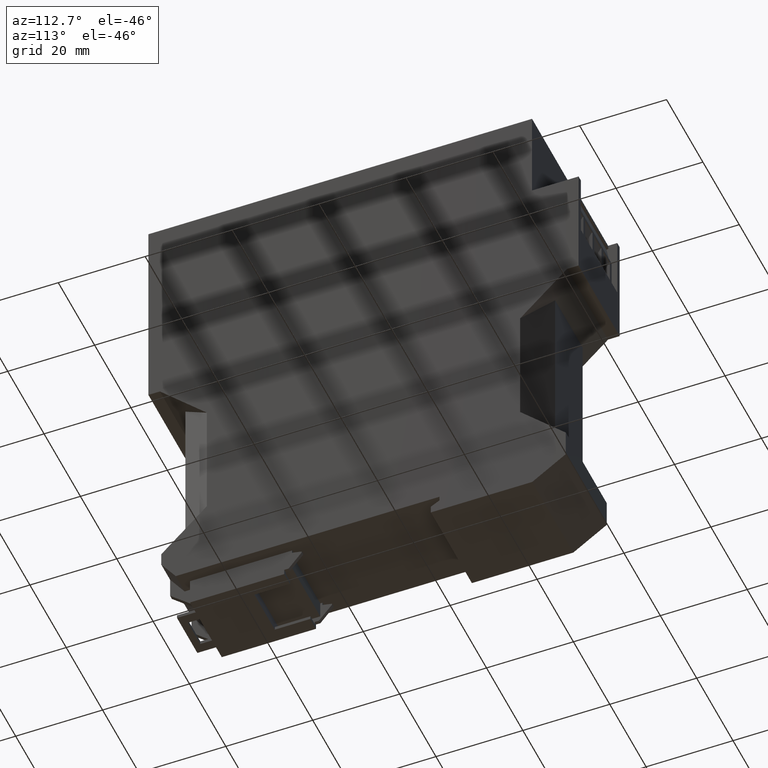
[diagram: clean part render]
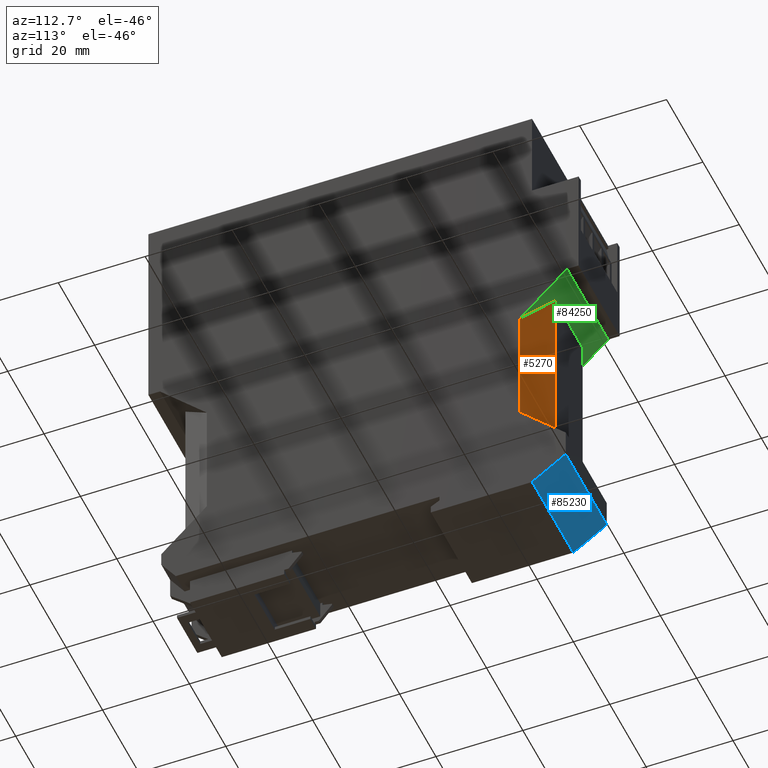
[diagram: same view with three faces highlighted in distinct colors, each labeled with its STEP entity id]
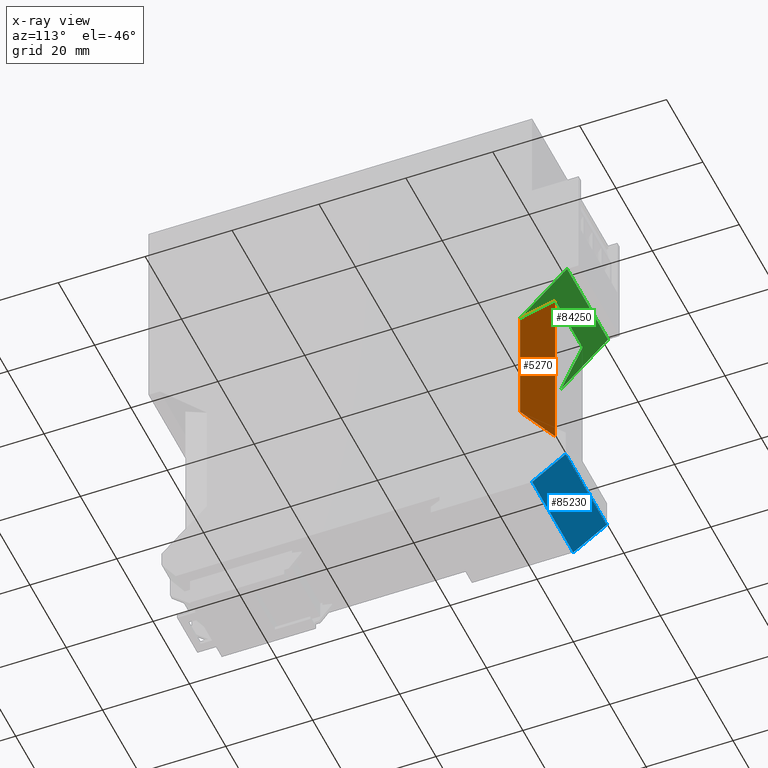
[diagram: x-ray of the same camera — body ghosted, the three highlighted faces saturated]
A machine part, auxiliary view with three faces highlighted in distinct colors.
The next image is the same camera in x-ray (body ghosted, the three faces saturated) — at least one of them is partly hidden behind the body in this view.
Their STEP definitions:

[orange] entity #5270 — the highlighted planar face has unit normal (0.866, 0.5, 0).
#2990=CARTESIAN_POINT('',(18.5499999999986,47.0999999999095,22.6));
#3000=VERTEX_POINT('',#2990);
#3030=CARTESIAN_POINT('',(18.5499999999986,24.,22.6));
#3040=DIRECTION('',(0.,1.,0.));
#3050=VECTOR('',#3040,1.);
#3060=LINE('',#3030,#3050);
#3070=CARTESIAN_POINT('',(18.5499999999986,18.5000000000902,22.6));
#3080=VERTEX_POINT('',#3070);
#3090=EDGE_CURVE('',#3080,#3000,#3060,.T.);
#4970=CARTESIAN_POINT('',(-4.26448822334936,53.7000000000005,
35.7719509171734));
#4980=DIRECTION('',(0.499999999999998,-0.,0.86602540378444));
#4990=DIRECTION('',(0.86602540378444,0.,-0.499999999999998));
#5000=AXIS2_PLACEMENT_3D('',#4970,#4980,#4990);
#5010=PLANE('',#5000);
#5020=CARTESIAN_POINT('',(24.,52.5499999999109,19.4534410329157));
#5030=DIRECTION('',(0.65465367070798,0.654653670707974,
-0.377964473009227));
#5040=VECTOR('',#5030,1.);
#5050=LINE('',#5020,#5040);
#5060=CARTESIAN_POINT('',(25.0500000000939,53.6000000000048,
18.8472232502124));
#5070=VERTEX_POINT('',#5060);
#5080=EDGE_CURVE('',#3000,#5070,#5050,.T.);
#5090=ORIENTED_EDGE('',*,*,#5080,.F.);
#5100=CARTESIAN_POINT('',(25.0500000000941,24.,18.8472232502123));
#5110=DIRECTION('',(-6.59999999999827E-15,1.,3.81051177665051E-15));
#5120=VECTOR('',#5110,1.);
#5130=LINE('',#5100,#5120);
#5140=CARTESIAN_POINT('',(25.0500000000942,11.9999999999957,
18.8472232502123));
#5150=VERTEX_POINT('',#5140);
#5160=EDGE_CURVE('',#5150,#5070,#5130,.T.);
#5170=ORIENTED_EDGE('',*,*,#5160,.T.);
#5180=CARTESIAN_POINT('',(24.,13.0500000000897,19.4534410329157));
#5190=DIRECTION('',(-0.65465367070803,0.654653670707909,
0.377964473009255));
#5200=VECTOR('',#5190,1.);
#5210=LINE('',#5180,#5200);
#5220=EDGE_CURVE('',#5150,#3080,#5210,.T.);
#5230=ORIENTED_EDGE('',*,*,#5220,.F.);
#5240=ORIENTED_EDGE('',*,*,#3090,.F.);
#5250=EDGE_LOOP('',(#5240,#5230,#5170,#5090));
#5260=FACE_OUTER_BOUND('',#5250,.T.);
#5270=ADVANCED_FACE('',(#5260),#5010,.T.);

[blue] entity #85230 — the highlighted planar face has unit normal (0, 0.5736, -0.8192).
#440=CARTESIAN_POINT('',(21.3380007636733,-4.00000000000004,0.));
#450=VERTEX_POINT('',#440);
#480=CARTESIAN_POINT('',(24.,-2.13604806801552,0.));
#490=DIRECTION('',(0.819152044288986,0.573576436351054,0.));
#500=VECTOR('',#490,1.);
#510=LINE('',#480,#500);
#520=CARTESIAN_POINT('',(29.0500000000947,1.40000000001001,0.));
#530=VERTEX_POINT('',#520);
#540=EDGE_CURVE('',#450,#530,#510,.T.);
#3230=CARTESIAN_POINT('',(29.0500000000947,1.40000000001705,22.6));
#3240=VERTEX_POINT('',#3230);
#3270=CARTESIAN_POINT('',(24.,-2.13604806800835,22.6));
#3280=DIRECTION('',(-0.819152044288986,-0.573576436351054,0.));
#3290=VECTOR('',#3280,1.);
#3300=LINE('',#3270,#3290);
#3310=CARTESIAN_POINT('',(21.338000763663,-4.00000000000013,22.6));
#3320=VERTEX_POINT('',#3310);
#3330=EDGE_CURVE('',#3240,#3320,#3300,.T.);
#84890=CARTESIAN_POINT('',(29.0500000000947,1.40000000000988,0.));
#84900=DIRECTION('',(0.,6.34347409244213E-13,1.));
#84910=VECTOR('',#84900,1.);
#84920=LINE('',#84890,#84910);
#84930=EDGE_CURVE('',#530,#3240,#84920,.T.);
#85070=CARTESIAN_POINT('',(-6.60207415350839,-23.5638510751622,
-11.2999999999453));
#85080=DIRECTION('',(0.573576436351054,-0.819152044288986,
5.19626977071819E-13));
#85090=DIRECTION('',(0.819152044288986,0.573576436351054,
7.42104231554538E-13));
#85100=AXIS2_PLACEMENT_3D('',#85070,#85080,#85090);
#85110=PLANE('',#85100);
#85120=ORIENTED_EDGE('',*,*,#540,.T.);
#85130=CARTESIAN_POINT('',(21.3380007636733,-4.00000000000004,0.));
#85140=DIRECTION('',(-9.11449562199973E-13,-3.85644490616134E-15,1.));
#85150=VECTOR('',#85140,1.);
#85160=LINE('',#85130,#85150);
#85170=EDGE_CURVE('',#450,#3320,#85160,.T.);
#85180=ORIENTED_EDGE('',*,*,#85170,.F.);
#85190=ORIENTED_EDGE('',*,*,#3330,.T.);
#85200=ORIENTED_EDGE('',*,*,#84930,.T.);
#85210=EDGE_LOOP('',(#85200,#85190,#85180,#85120));
#85220=FACE_OUTER_BOUND('',#85210,.T.);
#85230=ADVANCED_FACE('',(#85220),#85110,.T.);

[green] entity #84250 — the highlighted planar face has unit normal (0, -0.7071, 0.7071).
#760=CARTESIAN_POINT('',(18.5500000000902,47.1000000000011,0.));
#770=VERTEX_POINT('',#760);
#800=CARTESIAN_POINT('',(24.,52.5499999999109,0.));
#810=DIRECTION('',(0.707106781186551,0.707106781186544,0.));
#820=VECTOR('',#810,1.);
#830=LINE('',#800,#820);
#840=CARTESIAN_POINT('',(29.3500000000902,57.900000000001,0.));
#850=VERTEX_POINT('',#840);
#860=EDGE_CURVE('',#770,#850,#830,.T.);
#2910=CARTESIAN_POINT('',(29.3500000000902,57.900000000001,22.6));
#2920=VERTEX_POINT('',#2910);
#2950=CARTESIAN_POINT('',(24.,52.5499999999109,22.6));
#2960=DIRECTION('',(0.707106781186551,0.707106781186544,0.));
#2970=VECTOR('',#2960,1.);
#2980=LINE('',#2950,#2970);
#2990=CARTESIAN_POINT('',(18.5499999999986,47.0999999999095,22.6));
#3000=VERTEX_POINT('',#2990);
#3010=EDGE_CURVE('',#3000,#2920,#2980,.T.);
#4760=CARTESIAN_POINT('',(25.0500000000871,53.599999999998,
3.75277674973077));
#4770=VERTEX_POINT('',#4760);
#4800=CARTESIAN_POINT('',(24.,52.5499999999109,3.14655896703138));
#4810=DIRECTION('',(0.65465367070798,0.654653670707975,0.377964473009226
));
#4820=VECTOR('',#4810,1.);
#4830=LINE('',#4800,#4820);
#4840=EDGE_CURVE('',#770,#4770,#4830,.T.);
#5020=CARTESIAN_POINT('',(24.,52.5499999999109,19.4534410329157));
#5030=DIRECTION('',(0.65465367070798,0.654653670707974,
-0.377964473009227));
#5040=VECTOR('',#5030,1.);
#5050=LINE('',#5020,#5040);
#5060=CARTESIAN_POINT('',(25.0500000000939,53.6000000000048,
18.8472232502124));
#5070=VERTEX_POINT('',#5060);
#5080=EDGE_CURVE('',#3000,#5070,#5050,.T.);
#83840=CARTESIAN_POINT('',(29.3500000000902,57.9000000000011,0.));
#83850=DIRECTION('',(0.,0.,1.));
#83860=VECTOR('',#83850,1.);
#83870=LINE('',#83840,#83860);
#83880=EDGE_CURVE('',#850,#2920,#83870,.T.);
#84070=CARTESIAN_POINT('',(-26.7499999999105,1.80000000000086,11.3));
#84080=DIRECTION('',(-0.707106781186544,0.707106781186551,0.));
#84090=DIRECTION('',(0.707106781186551,0.707106781186544,0.));
#84100=AXIS2_PLACEMENT_3D('',#84070,#84080,#84090);
#84110=PLANE('',#84100);
#84120=ORIENTED_EDGE('',*,*,#860,.T.);
#84130=ORIENTED_EDGE('',*,*,#4840,.F.);
#84140=CARTESIAN_POINT('',(25.0500000000854,53.5999999999963,0.));
#84150=DIRECTION('',(4.52799999999997E-13,4.52799999999993E-13,1.));
#84160=VECTOR('',#84150,1.);
#84170=LINE('',#84140,#84160);
#84180=EDGE_CURVE('',#4770,#5070,#84170,.T.);
#84190=ORIENTED_EDGE('',*,*,#84180,.F.);
#84200=ORIENTED_EDGE('',*,*,#5080,.T.);
#84210=ORIENTED_EDGE('',*,*,#3010,.F.);
#84220=ORIENTED_EDGE('',*,*,#83880,.T.);
#84230=EDGE_LOOP('',(#84220,#84210,#84200,#84190,#84130,#84120));
#84240=FACE_OUTER_BOUND('',#84230,.T.);
#84250=ADVANCED_FACE('',(#84240),#84110,.F.);